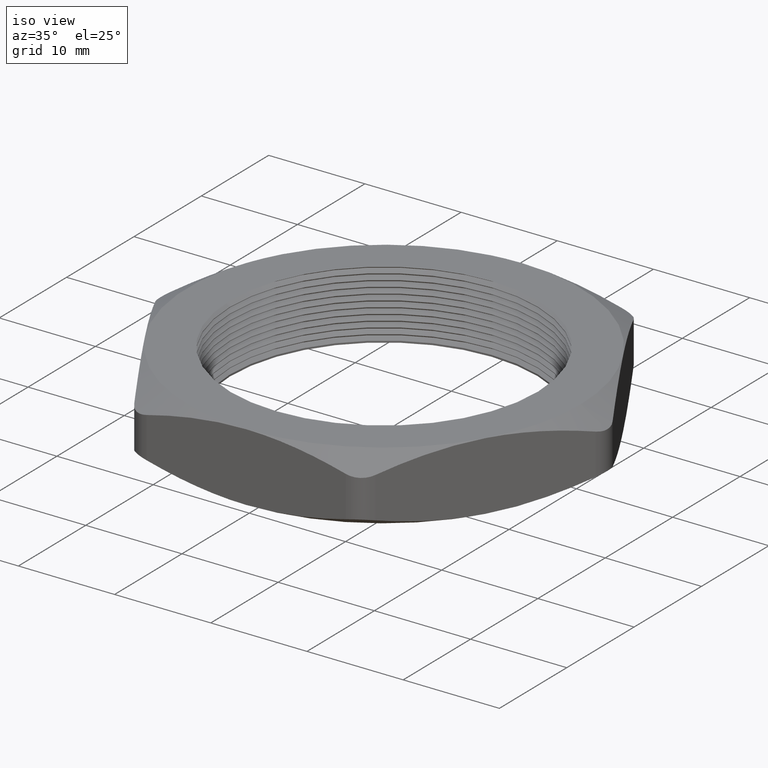
[diagram: clean part render]
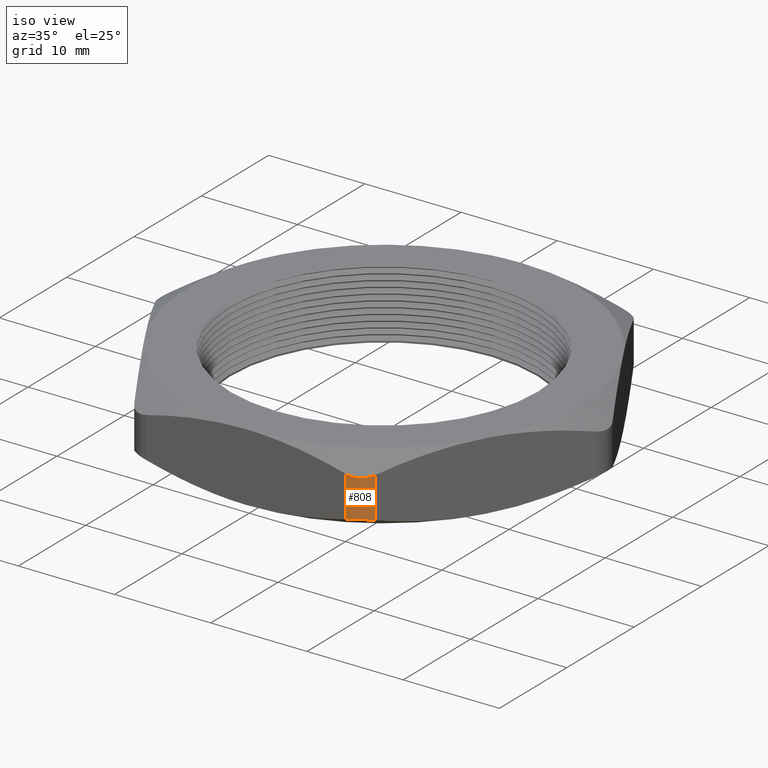
[diagram: same view with one face highlighted and labeled with its STEP entity id]
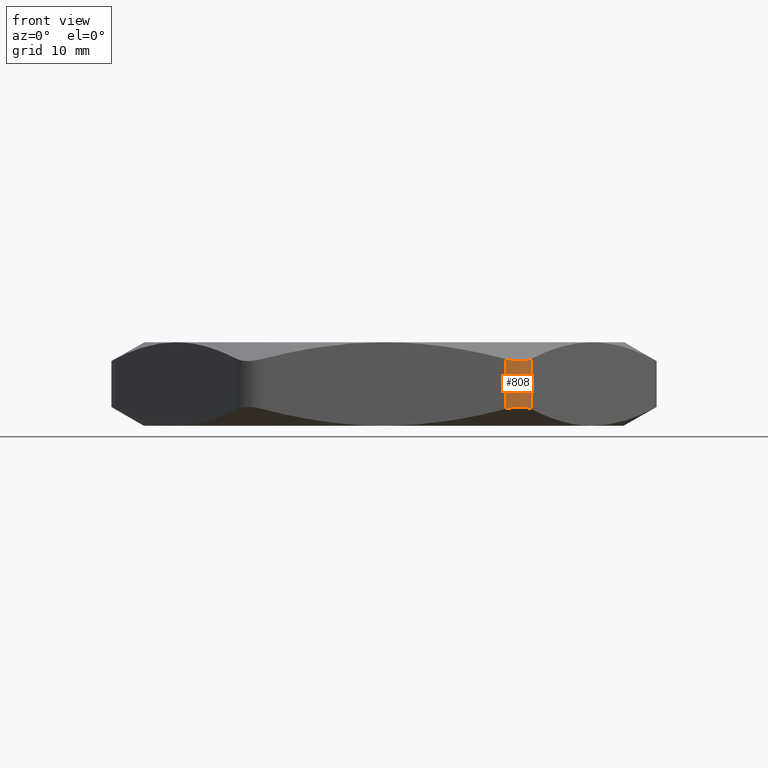
[diagram: same view with one face highlighted and labeled with its STEP entity id]
A machine part, iso view. The second image highlights one B-rep face of the part: STEP entity #808.
A second angle (front view) of the same face is appended — the face is thin or edge-on in the first view.
In plain terms, the highlighted cylindrical surface (edge-blend (fillet) strip) has radius 2.54 mm, axis along (0, 0, -1).
Its self-contained STEP definition (entity closure, byte-faithful):
#25 = VERTEX_POINT ( 'NONE', #1043 ) ;
#545 = VERTEX_POINT ( 'NONE', #1487 ) ;
#547 = EDGE_CURVE ( 'NONE', #545, #661, #1480, .T. ) ;
#572 = EDGE_CURVE ( 'NONE', #686, #25, #1560, .T. ) ;
#661 = VERTEX_POINT ( 'NONE', #1700 ) ;
#666 = EDGE_CURVE ( 'NONE', #25, #545, #1684, .T. ) ;
#686 = VERTEX_POINT ( 'NONE', #1749 ) ;
#798 = ORIENTED_EDGE ( 'NONE', *, *, #930, .F. ) ;
#799 = ORIENTED_EDGE ( 'NONE', *, *, #547, .F. ) ;
#808 = ADVANCED_FACE ( 'NONE', ( #2366 ), #2360, .T. ) ;
#833 = EDGE_LOOP ( 'NONE', ( #834, #835, #798, #799 ) ) ;
#834 = ORIENTED_EDGE ( 'NONE', *, *, #666, .F. ) ;
#835 = ORIENTED_EDGE ( 'NONE', *, *, #572, .F. ) ;
#930 = EDGE_CURVE ( 'NONE', #661, #686, #2578, .T. ) ;
#1043 = CARTESIAN_POINT ( 'NONE',  ( 0.4070319397786862900, -0.8049999999999998300, 0.2239663010554733500 ) ) ;
#1477 = DIRECTION ( 'NONE',  ( 0.0000000000000000000, 0.0000000000000000000, -1.000000000000000000 ) ) ;
#1478 = VECTOR ( 'NONE', #1477, 39.37007874015748100 ) ;
#1479 = CARTESIAN_POINT ( 'NONE',  ( 0.4936344801571300700, -0.7549999999999998900, 0.2800000000000000300 ) ) ;
#1480 = LINE ( 'NONE', #1479, #1478 ) ;
#1487 = CARTESIAN_POINT ( 'NONE',  ( 0.4936344801571300700, -0.7549999999999998900, 0.2239663010554733500 ) ) ;
#1557 = DIRECTION ( 'NONE',  ( 0.0000000000000000000, 0.0000000000000000000, 1.000000000000000000 ) ) ;
#1558 = VECTOR ( 'NONE', #1557, 39.37007874015748100 ) ;
#1559 = CARTESIAN_POINT ( 'NONE',  ( 0.4070319397786862900, -0.8049999999999998300, 0.2800000000000000300 ) ) ;
#1560 = LINE ( 'NONE', #1559, #1558 ) ;
#1674 = CARTESIAN_POINT ( 'NONE',  ( 0.4645762988425697900, -0.7872554515380407700, 0.2170280884318409900 ) ) ;
#1675 = CARTESIAN_POINT ( 'NONE',  ( 0.4493392765316813200, -0.7960351680652528700, 0.2170358288039216400 ) ) ;
#1676 = CARTESIAN_POINT ( 'NONE',  ( 0.4411208758462603600, -0.7994176478487901000, 0.2176415408248852900 ) ) ;
#1677 = CARTESIAN_POINT ( 'NONE',  ( 0.4241845384990577900, -0.8039067042452390200, 0.2200048133248839200 ) ) ;
#1678 = CARTESIAN_POINT ( 'NONE',  ( 0.4156420888985796200, -0.8049999999999996000, 0.2217232127178060100 ) ) ;
#1679 = CARTESIAN_POINT ( 'NONE',  ( 0.4070319397786862900, -0.8049999999999998300, 0.2239663010554733500 ) ) ;
#1684 = B_SPLINE_CURVE_WITH_KNOTS ( 'NONE', 3,
 ( #1679, #1678, #1677, #1676, #1675, #1674, #1732, #1731, #1730, #1729 ),
 .UNSPECIFIED., .F., .F.,
 ( 4, 2, 2, 2, 4 ),
 ( 1.734723475976807100E-018, 0.0006689416865004503900, 0.001337883373000899000, 0.002006825059501347700, 0.002675766746001796400 ),
 .UNSPECIFIED. ) ;
#1700 = CARTESIAN_POINT ( 'NONE',  ( 0.4936344801571501100, -0.7549999999999651400, 0.05603369894451626400 ) ) ;
#1729 = CARTESIAN_POINT ( 'NONE',  ( 0.4936344801571300700, -0.7549999999999998900, 0.2239663010554733500 ) ) ;
#1730 = CARTESIAN_POINT ( 'NONE',  ( 0.4893280908863833500, -0.7624588850141034200, 0.2217225277093531100 ) ) ;
#1731 = CARTESIAN_POINT ( 'NONE',  ( 0.4839825357055606600, -0.7694546523657028700, 0.2199724499956556000 ) ) ;
#1732 = CARTESIAN_POINT ( 'NONE',  ( 0.4716862299610635200, -0.7817829355136782800, 0.2176361305789827100 ) ) ;
#1749 = CARTESIAN_POINT ( 'NONE',  ( 0.4070319397786861200, -0.8049999999999998300, 0.05603369894452666500 ) ) ;
#2360 = CYLINDRICAL_SURFACE ( 'NONE', #2361, 0.1000000000000000200 ) ;
#2361 = AXIS2_PLACEMENT_3D ( 'NONE', #2424, #2423, #2422 ) ;
#2366 = FACE_OUTER_BOUND ( 'NONE', #833, .T. ) ;
#2422 = DIRECTION ( 'NONE',  ( -1.000000000000000000, 0.0000000000000000000, 0.0000000000000000000 ) ) ;
#2423 = DIRECTION ( 'NONE',  ( 0.0000000000000000000, 0.0000000000000000000, -1.000000000000000000 ) ) ;
#2424 = CARTESIAN_POINT ( 'NONE',  ( 0.4070319397786862400, -0.7049999999999998500, 0.2800000000000000300 ) ) ;
#2566 = CARTESIAN_POINT ( 'NONE',  ( 0.4070319397786861200, -0.8049999999999998300, 0.05603369894452666500 ) ) ;
#2567 = CARTESIAN_POINT ( 'NONE',  ( 0.4156447183201851800, -0.8050000000000002700, 0.05827747229064818300 ) ) ;
#2568 = CARTESIAN_POINT ( 'NONE',  ( 0.4243760081560520900, -0.8038684970918750200, 0.06002755000434629300 ) ) ;
#2569 = CARTESIAN_POINT ( 'NONE',  ( 0.4412007674195038700, -0.7993837255184222900, 0.06236386942101924300 ) ) ;
#2570 = CARTESIAN_POINT ( 'NONE',  ( 0.4494950708784708500, -0.7959626025628261400, 0.06297191156816037100 ) ) ;
#2571 = CARTESIAN_POINT ( 'NONE',  ( 0.4647170395845116600, -0.7871568124271639500, 0.06296417119607698700 ) ) ;
#2572 = CARTESIAN_POINT ( 'NONE',  ( 0.4717555533475554800, -0.7817307085468718800, 0.06235845917511121500 ) ) ;
#2573 = CARTESIAN_POINT ( 'NONE',  ( 0.4841113588995017400, -0.7693079383553462800, 0.05999518667510807300 ) ) ;
#2574 = CARTESIAN_POINT ( 'NONE',  ( 0.4893294055971859100, -0.7624566078681950200, 0.05827678728194019000 ) ) ;
#2575 = CARTESIAN_POINT ( 'NONE',  ( 0.4936344801571501100, -0.7549999999999651400, 0.05603369894451626400 ) ) ;
#2578 = B_SPLINE_CURVE_WITH_KNOTS ( 'NONE', 3,
 ( #2575, #2574, #2573, #2572, #2571, #2570, #2569, #2568, #2567, #2566 ),
 .UNSPECIFIED., .F., .F.,
 ( 4, 2, 2, 2, 4 ),
 ( 1.482966642631178000E-016, 0.0006689416865005970800, 0.001337883373001045800, 0.002006825059501494700, 0.002675766746001943400 ),
 .UNSPECIFIED. ) ;